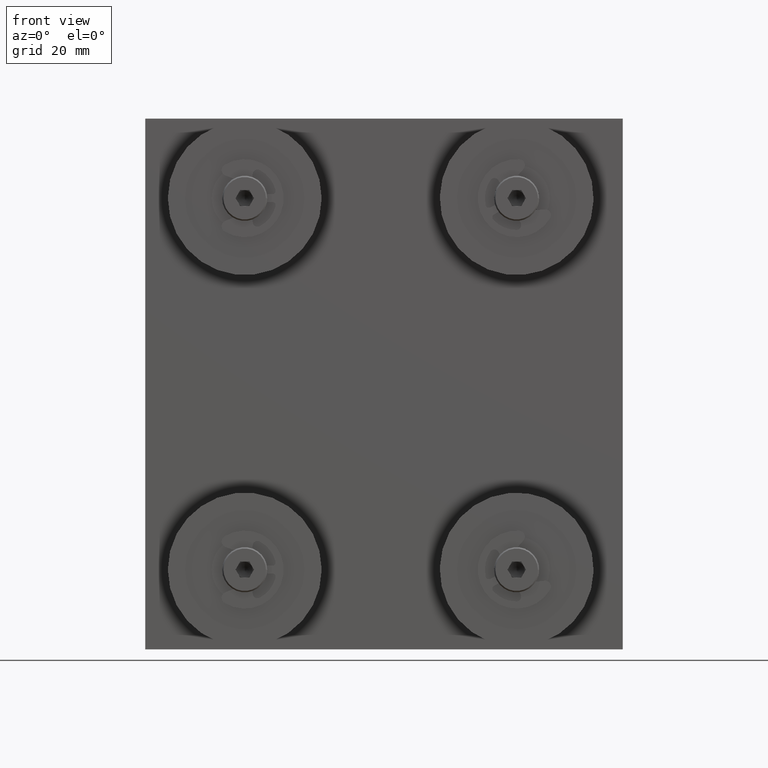
[diagram: clean part render]
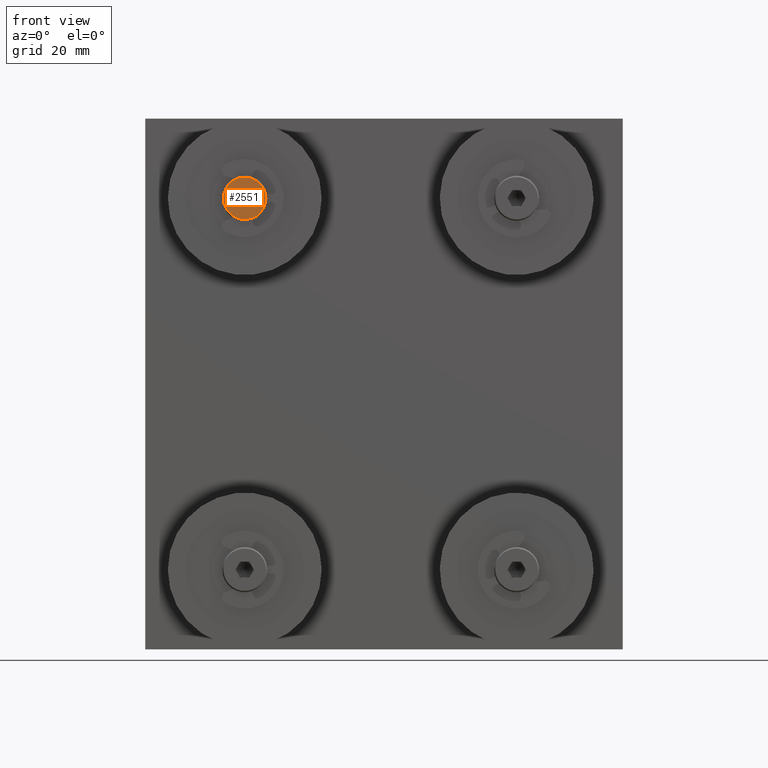
[diagram: same view with one face highlighted and labeled with its STEP entity id]
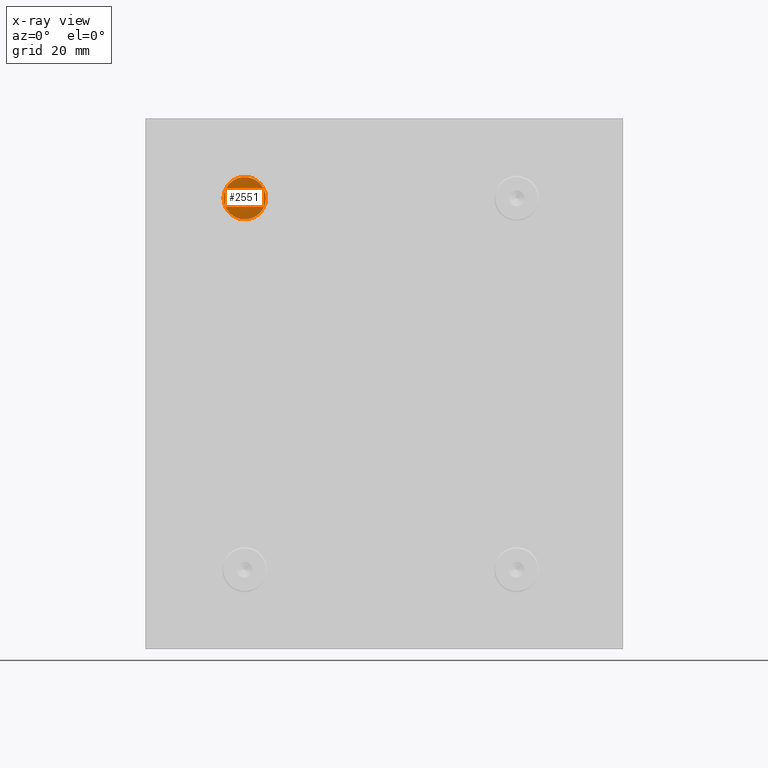
[diagram: x-ray of the same camera — body ghosted, the highlighted face saturated]
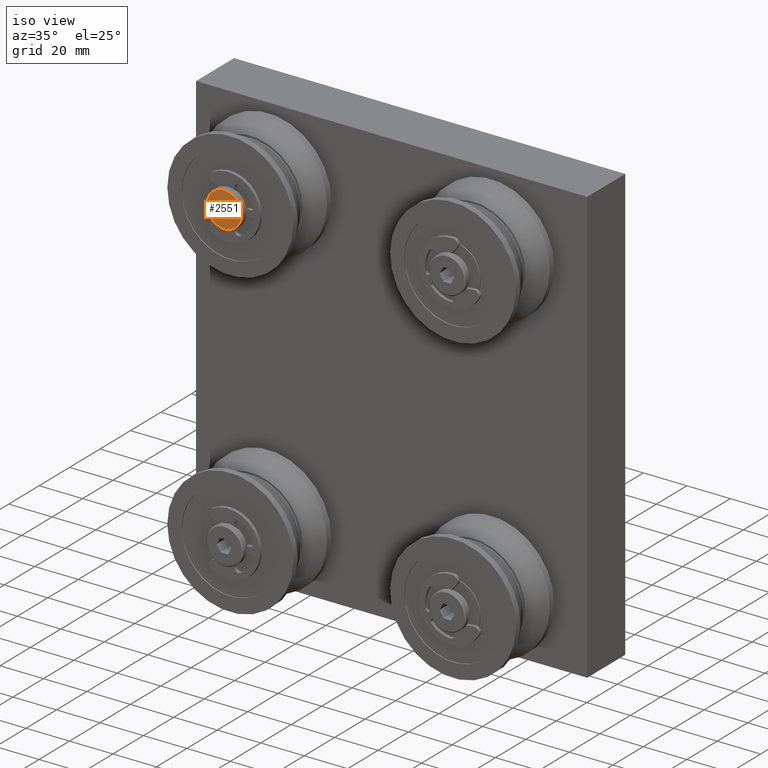
[diagram: same view with one face highlighted and labeled with its STEP entity id]
A machine part, front view. The second image highlights one B-rep face of the part: STEP entity #2551.
The next image is the same camera in x-ray: the body ghosted, the highlighted face saturated — about 0% of this face is hidden behind the body in this view.
A second angle (iso view) of the same face is appended — the face is thin or edge-on in the first view.
In plain terms, the highlighted planar face has unit normal (0, -1, 0).
Its self-contained STEP definition (entity closure, byte-faithful):
#235=LINE('',#4311,#434);
#237=LINE('',#4315,#436);
#239=LINE('',#4319,#438);
#241=LINE('',#4323,#440);
#243=LINE('',#4327,#442);
#245=LINE('',#4330,#444);
#434=VECTOR('',#3501,10.);
#436=VECTOR('',#3505,10.);
#438=VECTOR('',#3509,10.);
#440=VECTOR('',#3513,10.);
#442=VECTOR('',#3517,10.);
#444=VECTOR('',#3521,10.);
#600=FACE_BOUND('',#886,.T.);
#706=FACE_OUTER_BOUND('',#885,.T.);
#885=EDGE_LOOP('',(#2058));
#886=EDGE_LOOP('',(#2059,#2060,#2061,#2062,#2063,#2064));
#1031=CIRCLE('',#2980,8.);
#1201=VERTEX_POINT('',#4308);
#1202=VERTEX_POINT('',#4310);
#1203=VERTEX_POINT('',#4314);
#1204=VERTEX_POINT('',#4318);
#1205=VERTEX_POINT('',#4322);
#1206=VERTEX_POINT('',#4326);
#1227=VERTEX_POINT('',#4399);
#1475=EDGE_CURVE('',#1202,#1201,#235,.T.);
#1477=EDGE_CURVE('',#1203,#1202,#237,.T.);
#1479=EDGE_CURVE('',#1204,#1203,#239,.T.);
#1481=EDGE_CURVE('',#1205,#1204,#241,.T.);
#1483=EDGE_CURVE('',#1206,#1205,#243,.T.);
#1485=EDGE_CURVE('',#1201,#1206,#245,.T.);
#1519=EDGE_CURVE('',#1227,#1227,#1031,.T.);
#2058=ORIENTED_EDGE('',*,*,#1519,.F.);
#2059=ORIENTED_EDGE('',*,*,#1475,.T.);
#2060=ORIENTED_EDGE('',*,*,#1485,.T.);
#2061=ORIENTED_EDGE('',*,*,#1483,.T.);
#2062=ORIENTED_EDGE('',*,*,#1481,.T.);
#2063=ORIENTED_EDGE('',*,*,#1479,.T.);
#2064=ORIENTED_EDGE('',*,*,#1477,.T.);
#2430=PLANE('',#2985);
#2551=ADVANCED_FACE('',(#706,#600),#2430,.T.);
#2980=AXIS2_PLACEMENT_3D('',#4400,#3592,#3593);
#2985=AXIS2_PLACEMENT_3D('',#4410,#3604,#3605);
#3501=DIRECTION('',(0.,-1.,3.20493781063927E-16));
#3505=DIRECTION('',(0.,-0.5,-0.866025403784439));
#3509=DIRECTION('',(0.,0.5,-0.866025403784438));
#3513=DIRECTION('',(0.,1.,1.60246890531964E-16));
#3517=DIRECTION('',(0.,0.5,0.866025403784439));
#3521=DIRECTION('',(0.,-0.5,0.866025403784439));
#3592=DIRECTION('center_axis',(-1.,0.,0.));
#3593=DIRECTION('ref_axis',(0.,-1.,0.));
#3604=DIRECTION('center_axis',(1.,0.,0.));
#3605=DIRECTION('ref_axis',(0.,0.,-1.));
#4308=CARTESIAN_POINT('',(35.,-1.73205080756888,-2.99999999999999));
#4310=CARTESIAN_POINT('',(35.,1.73205080756888,-3.));
#4311=CARTESIAN_POINT('',(35.,1.25897459621556,-2.99999999999999));
#4314=CARTESIAN_POINT('',(35.,3.46410161513775,6.59072475150228E-15));
#4315=CARTESIAN_POINT('',(35.,2.69631350946109,-1.32984800847903));
#4318=CARTESIAN_POINT('',(35.,1.73205080756888,3.00000000000001));
#4319=CARTESIAN_POINT('',(35.,3.56233891324554,-0.170151991520962));
#4322=CARTESIAN_POINT('',(35.,-1.73205080756888,3.));
#4323=CARTESIAN_POINT('',(35.,2.99102540378444,3.00000000000001));
#4326=CARTESIAN_POINT('',(35.,-3.46410161513775,5.38466187370661E-15));
#4327=CARTESIAN_POINT('',(35.,-1.6338135094611,3.17015199152097));
#4330=CARTESIAN_POINT('',(35.,-2.49983891324553,-1.67015199152096));
#4399=CARTESIAN_POINT('',(35.,8.,-9.79717439317883E-16));
#4400=CARTESIAN_POINT('Origin',(35.,0.,0.));
#4410=CARTESIAN_POINT('Origin',(35.,4.25,0.));